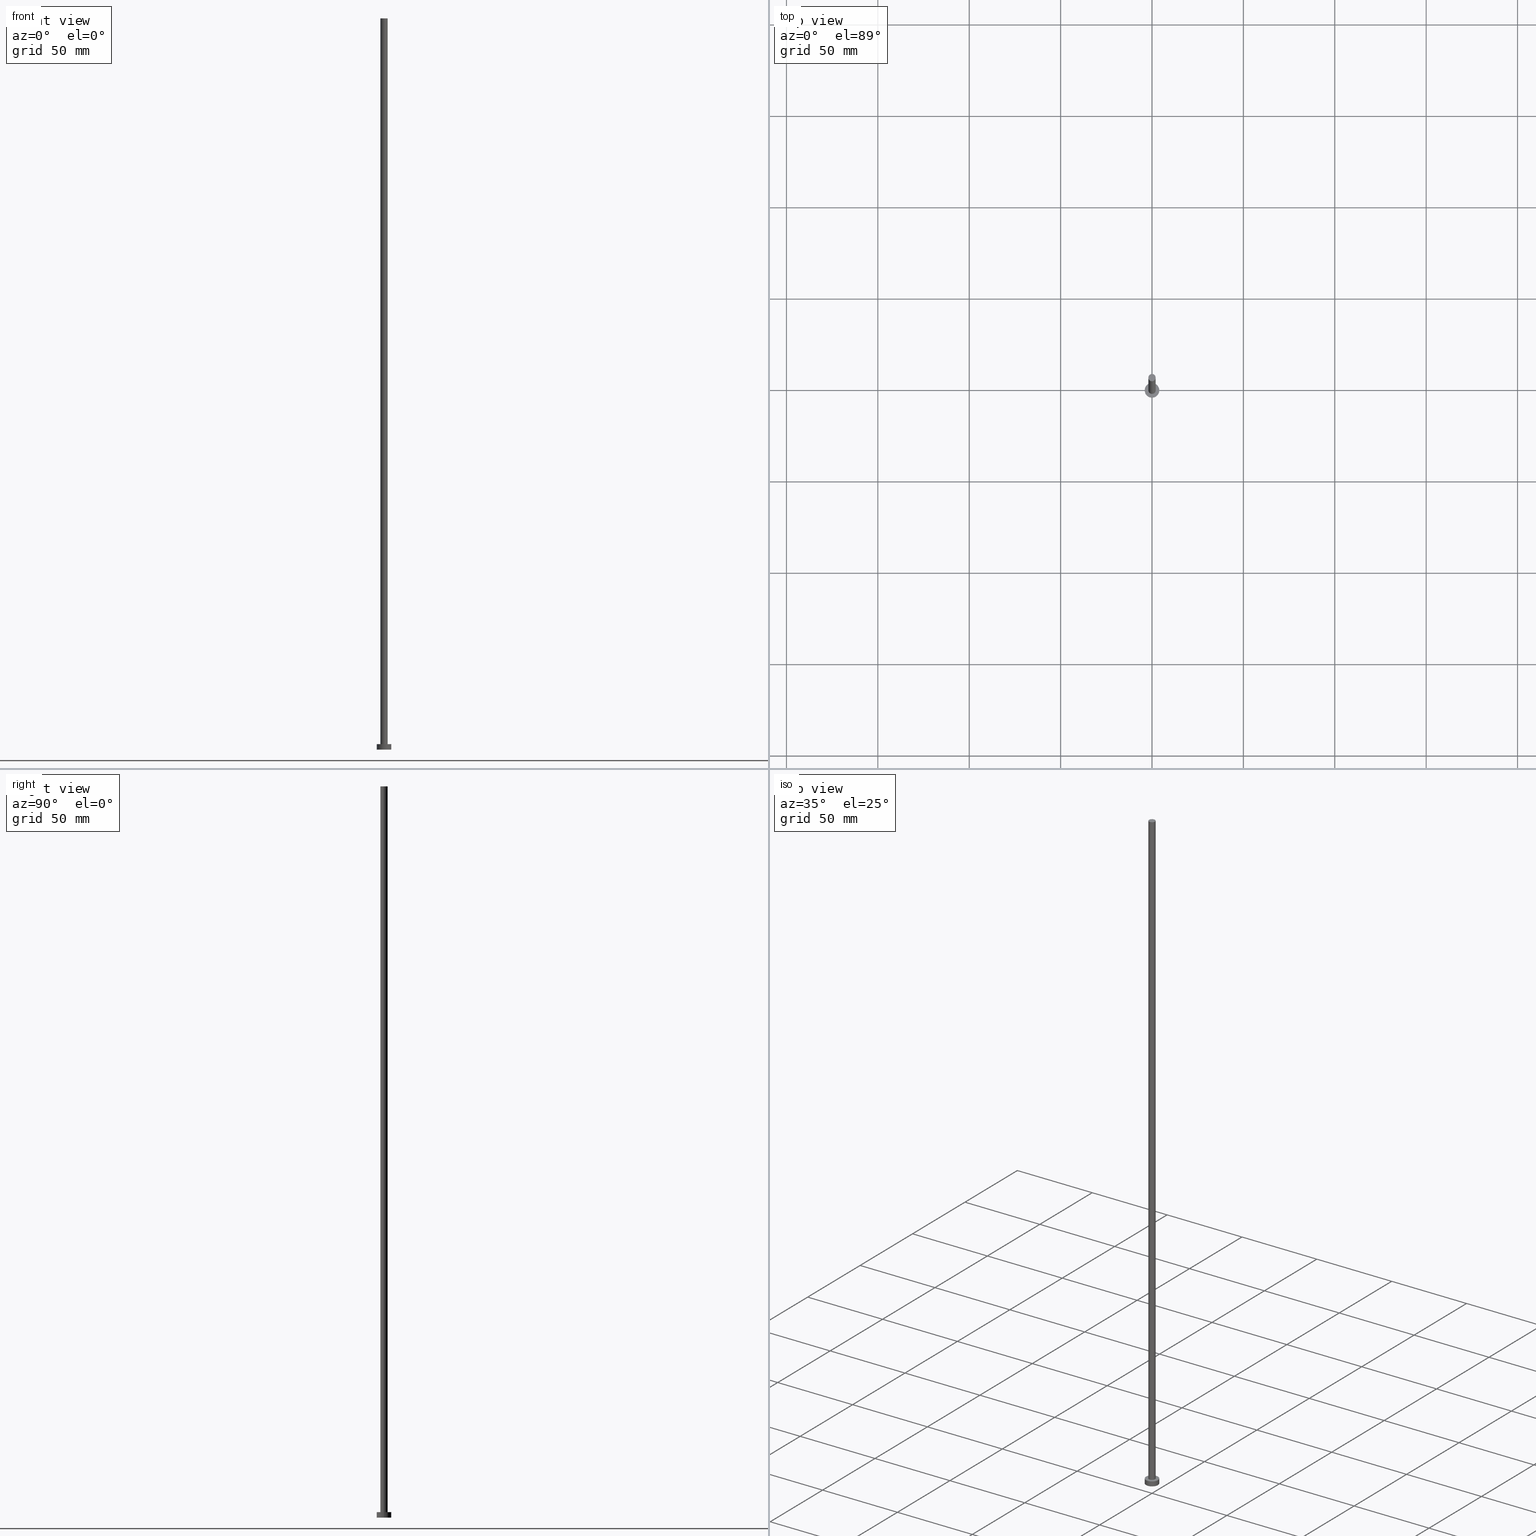
[diagram: canonical four-view strip — front | top / right | iso, engineering-drawing reading convention]
A machine part, canonical four-view strip (front | top / right | iso — engineering-drawing reading convention). The complete STEP part file that produces these views, byte-faithful:
ISO-10303-21;
HEADER;
FILE_DESCRIPTION (( 'STEP AP203' ),
    '1' );
FILE_NAME ('f3f9.STEP',
    '2023-02-12T12:38:47',
    ( '' ),
    ( '' ),
    'SwSTEP 2.0',
    'SolidWorks 2019',
    '' );
FILE_SCHEMA (( 'CONFIG_CONTROL_DESIGN' ));
ENDSEC;

DATA;
#1 = CIRCLE ( 'NONE', #149, 2.000000000000000000 ) ;
#2 = FACE_OUTER_BOUND ( 'NONE', #100, .T. ) ;
#3 = PRODUCT_DEFINITION ( 'NEZN�M�', '', #140, #81 ) ;
#4 = CYLINDRICAL_SURFACE ( 'NONE', #96, 4.000000000000000000 ) ;
#5 = DIRECTION ( 'NONE',  ( 1.000000000000000000, 0.000000000000000000, 0.000000000000000000 ) ) ;
#6 = LOCAL_TIME ( 13, 38, 47.00000000000000000, #209 ) ;
#7 = CARTESIAN_POINT ( 'NONE',  ( 0.000000000000000000, 0.000000000000000000, 3.000000000000000000 ) ) ;
#8 = CC_DESIGN_PERSON_AND_ORGANIZATION_ASSIGNMENT ( #71, #42, ( #3 ) ) ;
#9 = ADVANCED_FACE ( 'NONE', ( #186 ), #10, .T. ) ;
#10 = CYLINDRICAL_SURFACE ( 'NONE', #20, 2.000000000000000000 ) ;
#11 = VERTEX_POINT ( 'NONE', #55 ) ;
#12 = FACE_OUTER_BOUND ( 'NONE', #247, .T. ) ;
#13 = APPROVAL_STATUS ( 'not_yet_approved' ) ;
#14 = APPROVAL_DATE_TIME ( #233, #85 ) ;
#15 = UNCERTAINTY_MEASURE_WITH_UNIT (LENGTH_MEASURE( 1.000000000000000082E-05 ), #221, 'distance_accuracy_value', 'NONE');
#16 = EDGE_CURVE ( 'NONE', #65, #173, #201, .T. ) ;
#17 = PRODUCT_RELATED_PRODUCT_CATEGORY ( 'detail', '', ( #181 ) ) ;
#18 = APPROVAL_ROLE ( '' ) ;
#19 = PERSON_AND_ORGANIZATION ( #254, #253 ) ;
#20 = AXIS2_PLACEMENT_3D ( 'NONE', #66, #225, #34 ) ;
#21 = PERSON_AND_ORGANIZATION_ROLE ( 'design_supplier' ) ;
#22 = CARTESIAN_POINT ( 'NONE',  ( 0.000000000000000000, 0.000000000000000000, 400.0000000000000000 ) ) ;
#23 = CARTESIAN_POINT ( 'NONE',  ( 0.000000000000000000, 0.000000000000000000, 400.0000000000000000 ) ) ;
#24 = CC_DESIGN_APPROVAL ( #207, ( #140 ) ) ;
#25 = EDGE_CURVE ( 'NONE', #169, #147, #231, .T. ) ;
#26 = CARTESIAN_POINT ( 'NONE',  ( 2.000000000000000000, 2.449293598294706414E-16, 3.000000000000000000 ) ) ;
#27 = DIRECTION ( 'NONE',  ( 1.000000000000000000, 0.000000000000000000, 0.000000000000000000 ) ) ;
#28 = EDGE_CURVE ( 'NONE', #11, #206, #237, .T. ) ;
#29 = ORIENTED_EDGE ( 'NONE', *, *, #218, .T. ) ;
#30 = DIRECTION ( 'NONE',  ( -0.000000000000000000, -0.000000000000000000, -1.000000000000000000 ) ) ;
#31 = ORIENTED_EDGE ( 'NONE', *, *, #102, .F. ) ;
#32 = CARTESIAN_POINT ( 'NONE',  ( 0.000000000000000000, 0.000000000000000000, 0.000000000000000000 ) ) ;
#33 = EDGE_CURVE ( 'NONE', #240, #169, #104, .T. ) ;
#34 = DIRECTION ( 'NONE',  ( -1.000000000000000000, 0.000000000000000000, 0.000000000000000000 ) ) ;
#35 = CARTESIAN_POINT ( 'NONE',  ( -2.000000000000000000, 0.000000000000000000, 400.0000000000000000 ) ) ;
#36 = LOCAL_TIME ( 13, 38, 47.00000000000000000, #58 ) ;
#37 = APPROVAL ( #13, 'NEUR�EN�' ) ;
#38 = CARTESIAN_POINT ( 'NONE',  ( 2.000000000000000000, 2.449293598294706414E-16, 400.0000000000000000 ) ) ;
#39 = CARTESIAN_POINT ( 'NONE',  ( 0.000000000000000000, 0.000000000000000000, 400.0000000000000000 ) ) ;
#40 = CALENDAR_DATE ( 2023, 12, 2 ) ;
#41 = VECTOR ( 'NONE', #142, 1000.000000000000000 ) ;
#42 = PERSON_AND_ORGANIZATION_ROLE ( 'creator' ) ;
#43 = PERSON_AND_ORGANIZATION_ROLE ( 'design_owner' ) ;
#44 = DATE_AND_TIME ( #193, #113 ) ;
#45 = PERSON_AND_ORGANIZATION ( #254, #253 ) ;
#46 = FACE_OUTER_BOUND ( 'NONE', #63, .T. ) ;
#47 = DIRECTION ( 'NONE',  ( -1.000000000000000000, 0.000000000000000000, 0.000000000000000000 ) ) ;
#48 = AXIS2_PLACEMENT_3D ( 'NONE', #23, #182, #199 ) ;
#49 = DIRECTION ( 'NONE',  ( 0.000000000000000000, 0.000000000000000000, 1.000000000000000000 ) ) ;
#50 = ORIENTED_EDGE ( 'NONE', *, *, #90, .T. ) ;
#51 = ORIENTED_EDGE ( 'NONE', *, *, #16, .T. ) ;
#52 = DIRECTION ( 'NONE',  ( -0.000000000000000000, -0.000000000000000000, -1.000000000000000000 ) ) ;
#53 = ORIENTED_EDGE ( 'NONE', *, *, #25, .F. ) ;
#54 = FACE_OUTER_BOUND ( 'NONE', #227, .T. ) ;
#55 = CARTESIAN_POINT ( 'NONE',  ( 4.000000000000000000, 4.898587196589412829E-16, 0.000000000000000000 ) ) ;
#56 = CARTESIAN_POINT ( 'NONE',  ( 2.000000000000000000, 2.449293598294706414E-16, 400.0000000000000000 ) ) ;
#57 = ADVANCED_BREP_SHAPE_REPRESENTATION ( 'f3f9', ( #121, #126 ), #106 ) ;
#58 = COORDINATED_UNIVERSAL_TIME_OFFSET ( 1, 0, .AHEAD. ) ;
#59 = AXIS2_PLACEMENT_3D ( 'NONE', #184, #217, #5 ) ;
#60 = DATE_AND_TIME ( #40, #6 ) ;
#61 = CARTESIAN_POINT ( 'NONE',  ( 0.000000000000000000, 0.000000000000000000, 3.000000000000000000 ) ) ;
#62 = DIRECTION ( 'NONE',  ( 0.000000000000000000, 0.000000000000000000, 1.000000000000000000 ) ) ;
#63 = EDGE_LOOP ( 'NONE', ( #51, #128 ) ) ;
#64 = EDGE_CURVE ( 'NONE', #173, #11, #73, .T. ) ;
#65 = VERTEX_POINT ( 'NONE', #141 ) ;
#66 = CARTESIAN_POINT ( 'NONE',  ( 0.000000000000000000, 0.000000000000000000, 400.0000000000000000 ) ) ;
#67 = DIRECTION ( 'NONE',  ( -0.000000000000000000, -0.000000000000000000, -1.000000000000000000 ) ) ;
#68 = DIRECTION ( 'NONE',  ( 0.000000000000000000, 0.000000000000000000, 1.000000000000000000 ) ) ;
#69 = CIRCLE ( 'NONE', #212, 4.000000000000000000 ) ;
#70 = DIRECTION ( 'NONE',  ( 1.000000000000000000, 0.000000000000000000, 0.000000000000000000 ) ) ;
#71 = PERSON_AND_ORGANIZATION ( #254, #253 ) ;
#72 = PERSON_AND_ORGANIZATION_ROLE ( 'creator' ) ;
#73 = LINE ( 'NONE', #122, #112 ) ;
#74 = AXIS2_PLACEMENT_3D ( 'NONE', #168, #228, #108 ) ;
#75 = DIRECTION ( 'NONE',  ( 0.000000000000000000, 0.000000000000000000, 1.000000000000000000 ) ) ;
#76 = ORIENTED_EDGE ( 'NONE', *, *, #16, .F. ) ;
#77 = CARTESIAN_POINT ( 'NONE',  ( 0.000000000000000000, 0.000000000000000000, 3.000000000000000000 ) ) ;
#78 = EDGE_CURVE ( 'NONE', #169, #240, #1, .T. ) ;
#79 = DIRECTION ( 'NONE',  ( 1.000000000000000000, 0.000000000000000000, 0.000000000000000000 ) ) ;
#80 = DIRECTION ( 'NONE',  ( -0.000000000000000000, -0.000000000000000000, -1.000000000000000000 ) ) ;
#81 = DESIGN_CONTEXT ( 'detailed design', #145, 'design' ) ;
#82 = APPROVAL_PERSON_ORGANIZATION ( #115, #85, #160 ) ;
#83 = CARTESIAN_POINT ( 'NONE',  ( -4.000000000000000000, 0.000000000000000000, 0.000000000000000000 ) ) ;
#84 = ORIENTED_EDGE ( 'NONE', *, *, #148, .F. ) ;
#85 = APPROVAL ( #236, 'NEUR�EN�' ) ;
#86 = ORIENTED_EDGE ( 'NONE', *, *, #148, .T. ) ;
#87 = DIRECTION ( 'NONE',  ( -1.000000000000000000, 0.000000000000000000, 0.000000000000000000 ) ) ;
#88 = DIRECTION ( 'NONE',  ( -0.000000000000000000, -0.000000000000000000, -1.000000000000000000 ) ) ;
#89 = APPROVAL_DATE_TIME ( #44, #37 ) ;
#90 = EDGE_CURVE ( 'NONE', #65, #206, #239, .T. ) ;
#91 = APPROVAL_STATUS ( 'not_yet_approved' ) ;
#92 = CALENDAR_DATE ( 2023, 12, 2 ) ;
#93 = CLOSED_SHELL ( 'NONE', ( #9, #152, #98, #119, #243, #255, #136 ) ) ;
#94 = APPLICATION_PROTOCOL_DEFINITION ( 'international standard', 'config_control_design', 1994, #145 ) ;
#95 = DIRECTION ( 'NONE',  ( 0.000000000000000000, 0.000000000000000000, 1.000000000000000000 ) ) ;
#96 = AXIS2_PLACEMENT_3D ( 'NONE', #77, #80, #47 ) ;
#97 = LINE ( 'NONE', #165, #197 ) ;
#98 = ADVANCED_FACE ( 'NONE', ( #99 ), #4, .T. ) ;
#99 = FACE_OUTER_BOUND ( 'NONE', #103, .T. ) ;
#100 = EDGE_LOOP ( 'NONE', ( #224, #162 ) ) ;
#101 = APPLICATION_PROTOCOL_DEFINITION ( 'international standard', 'config_control_design', 1994, #130 ) ;
#102 = EDGE_CURVE ( 'NONE', #203, #147, #210, .T. ) ;
#103 = EDGE_LOOP ( 'NONE', ( #200, #76, #50, #124 ) ) ;
#104 = CIRCLE ( 'NONE', #222, 2.000000000000000000 ) ;
#105 = DIRECTION ( 'NONE',  ( -1.000000000000000000, 0.000000000000000000, 0.000000000000000000 ) ) ;
#106 =( GEOMETRIC_REPRESENTATION_CONTEXT ( 3 ) GLOBAL_UNCERTAINTY_ASSIGNED_CONTEXT ( ( #15 ) ) GLOBAL_UNIT_ASSIGNED_CONTEXT ( ( #221, #244, #185 ) ) REPRESENTATION_CONTEXT ( 'NONE', 'WORKASPACE' ) );
#107 = ORIENTED_EDGE ( 'NONE', *, *, #218, .F. ) ;
#108 = DIRECTION ( 'NONE',  ( 1.000000000000000000, 0.000000000000000000, 0.000000000000000000 ) ) ;
#109 = EDGE_CURVE ( 'NONE', #206, #11, #135, .T. ) ;
#110 = CARTESIAN_POINT ( 'NONE',  ( 4.000000000000000000, 4.898587196589412829E-16, 3.000000000000000000 ) ) ;
#111 = DIRECTION ( 'NONE',  ( 1.000000000000000000, 0.000000000000000000, 0.000000000000000000 ) ) ;
#112 = VECTOR ( 'NONE', #120, 1000.000000000000000 ) ;
#113 = LOCAL_TIME ( 13, 38, 47.00000000000000000, #139 ) ;
#114 = APPROVAL_DATE_TIME ( #251, #207 ) ;
#115 = PERSON_AND_ORGANIZATION ( #254, #253 ) ;
#116 = CC_DESIGN_DATE_AND_TIME_ASSIGNMENT ( #195, #196, ( #3 ) ) ;
#117 = CARTESIAN_POINT ( 'NONE',  ( 0.000000000000000000, 0.000000000000000000, 3.000000000000000000 ) ) ;
#118 = CARTESIAN_POINT ( 'NONE',  ( 0.000000000000000000, 0.000000000000000000, 3.000000000000000000 ) ) ;
#119 = ADVANCED_FACE ( 'NONE', ( #166, #46 ), #163, .T. ) ;
#120 = DIRECTION ( 'NONE',  ( -0.000000000000000000, -0.000000000000000000, -1.000000000000000000 ) ) ;
#121 = MANIFOLD_SOLID_BREP ( 'P�idat vysunut�m3', #93 ) ;
#122 = CARTESIAN_POINT ( 'NONE',  ( 4.000000000000000000, 4.898587196589412829E-16, 3.000000000000000000 ) ) ;
#123 = AXIS2_PLACEMENT_3D ( 'NONE', #249, #131, #111 ) ;
#124 = ORIENTED_EDGE ( 'NONE', *, *, #109, .T. ) ;
#125 = CC_DESIGN_PERSON_AND_ORGANIZATION_ASSIGNMENT ( #138, #235, ( #234 ) ) ;
#126 = AXIS2_PLACEMENT_3D ( 'NONE', #211, #213, #178 ) ;
#127 = EDGE_CURVE ( 'NONE', #173, #65, #69, .T. ) ;
#128 = ORIENTED_EDGE ( 'NONE', *, *, #127, .T. ) ;
#129 = EDGE_LOOP ( 'NONE', ( #202, #188, #29, #84 ) ) ;
#130 = APPLICATION_CONTEXT ( 'configuration controlled 3d designs of mechanical parts and assemblies' ) ;
#131 = DIRECTION ( 'NONE',  ( 0.000000000000000000, 0.000000000000000000, 1.000000000000000000 ) ) ;
#132 = CC_DESIGN_PERSON_AND_ORGANIZATION_ASSIGNMENT ( #19, #43, ( #181 ) ) ;
#133 = SHAPE_DEFINITION_REPRESENTATION ( #183, #57 ) ;
#134 = SECURITY_CLASSIFICATION_LEVEL ( 'unclassified' ) ;
#135 = CIRCLE ( 'NONE', #59, 4.000000000000000000 ) ;
#136 = ADVANCED_FACE ( 'NONE', ( #2 ), #198, .T. ) ;
#137 = AXIS2_PLACEMENT_3D ( 'NONE', #32, #68, #153 ) ;
#138 = PERSON_AND_ORGANIZATION ( #254, #253 ) ;
#139 = COORDINATED_UNIVERSAL_TIME_OFFSET ( 1, 0, .AHEAD. ) ;
#140 = PRODUCT_DEFINITION_FORMATION_WITH_SPECIFIED_SOURCE ( 'LIBOVOLN�', '', #181, .NOT_KNOWN. ) ;
#141 = CARTESIAN_POINT ( 'NONE',  ( -4.000000000000000000, 0.000000000000000000, 3.000000000000000000 ) ) ;
#142 = DIRECTION ( 'NONE',  ( -0.000000000000000000, -0.000000000000000000, -1.000000000000000000 ) ) ;
#143 = ORIENTED_EDGE ( 'NONE', *, *, #33, .F. ) ;
#144 = LOCAL_TIME ( 13, 38, 47.00000000000000000, #156 ) ;
#145 = APPLICATION_CONTEXT ( 'configuration controlled 3d designs of mechanical parts and assemblies' ) ;
#146 = ORIENTED_EDGE ( 'NONE', *, *, #102, .T. ) ;
#147 = VERTEX_POINT ( 'NONE', #26 ) ;
#148 = EDGE_CURVE ( 'NONE', #240, #203, #97, .T. ) ;
#149 = AXIS2_PLACEMENT_3D ( 'NONE', #22, #75, #27 ) ;
#150 = CYLINDRICAL_SURFACE ( 'NONE', #219, 2.000000000000000000 ) ;
#151 = ORIENTED_EDGE ( 'NONE', *, *, #127, .F. ) ;
#152 = ADVANCED_FACE ( 'NONE', ( #12 ), #248, .T. ) ;
#153 = DIRECTION ( 'NONE',  ( 1.000000000000000000, 0.000000000000000000, -0.000000000000000000 ) ) ;
#154 = CC_DESIGN_APPROVAL ( #37, ( #234 ) ) ;
#155 = DIRECTION ( 'NONE',  ( 0.000000000000000000, 0.000000000000000000, 1.000000000000000000 ) ) ;
#156 = COORDINATED_UNIVERSAL_TIME_OFFSET ( 1, 0, .AHEAD. ) ;
#157 = APPROVAL_ROLE ( '' ) ;
#158 = PERSON_AND_ORGANIZATION ( #254, #253 ) ;
#159 = CC_DESIGN_DATE_AND_TIME_ASSIGNMENT ( #60, #176, ( #234 ) ) ;
#160 = APPROVAL_ROLE ( '' ) ;
#161 = DIRECTION ( 'NONE',  ( 1.000000000000000000, 0.000000000000000000, 0.000000000000000000 ) ) ;
#162 = ORIENTED_EDGE ( 'NONE', *, *, #78, .T. ) ;
#163 = PLANE ( 'NONE',  #241 ) ;
#164 = ORIENTED_EDGE ( 'NONE', *, *, #109, .F. ) ;
#165 = CARTESIAN_POINT ( 'NONE',  ( -2.000000000000000000, 0.000000000000000000, 400.0000000000000000 ) ) ;
#166 = FACE_BOUND ( 'NONE', #187, .T. ) ;
#167 = ORIENTED_EDGE ( 'NONE', *, *, #28, .T. ) ;
#168 = CARTESIAN_POINT ( 'NONE',  ( 0.000000000000000000, 0.000000000000000000, 3.000000000000000000 ) ) ;
#169 = VERTEX_POINT ( 'NONE', #38 ) ;
#170 = ORIENTED_EDGE ( 'NONE', *, *, #28, .F. ) ;
#171 = CIRCLE ( 'NONE', #74, 2.000000000000000000 ) ;
#172 = ORIENTED_EDGE ( 'NONE', *, *, #90, .F. ) ;
#173 = VERTEX_POINT ( 'NONE', #110 ) ;
#174 = VECTOR ( 'NONE', #88, 1000.000000000000000 ) ;
#175 = CARTESIAN_POINT ( 'NONE',  ( 0.000000000000000000, 0.000000000000000000, 3.000000000000000000 ) ) ;
#176 = DATE_TIME_ROLE ( 'classification_date' ) ;
#177 = COORDINATED_UNIVERSAL_TIME_OFFSET ( 1, 0, .AHEAD. ) ;
#178 = DIRECTION ( 'NONE',  ( 1.000000000000000000, 0.000000000000000000, 0.000000000000000000 ) ) ;
#179 = APPROVAL_PERSON_ORGANIZATION ( #232, #207, #18 ) ;
#180 = DIRECTION ( 'NONE',  ( 1.000000000000000000, 0.000000000000000000, -0.000000000000000000 ) ) ;
#181 = PRODUCT ( 'f3f9', 'f3f9', '', ( #194 ) ) ;
#182 = DIRECTION ( 'NONE',  ( 0.000000000000000000, 0.000000000000000000, 1.000000000000000000 ) ) ;
#183 = PRODUCT_DEFINITION_SHAPE ( 'NONE', 'NONE',  #3 ) ;
#184 = CARTESIAN_POINT ( 'NONE',  ( 0.000000000000000000, 0.000000000000000000, 0.000000000000000000 ) ) ;
#185 =( NAMED_UNIT ( * ) SI_UNIT ( $, .STERADIAN. ) SOLID_ANGLE_UNIT ( ) );
#186 = FACE_OUTER_BOUND ( 'NONE', #129, .T. ) ;
#187 = EDGE_LOOP ( 'NONE', ( #31, #107 ) ) ;
#188 = ORIENTED_EDGE ( 'NONE', *, *, #25, .T. ) ;
#189 = PLANE ( 'NONE',  #137 ) ;
#190 = CC_DESIGN_PERSON_AND_ORGANIZATION_ASSIGNMENT ( #215, #21, ( #140 ) ) ;
#191 = AXIS2_PLACEMENT_3D ( 'NONE', #175, #155, #70 ) ;
#192 = DIRECTION ( 'NONE',  ( 1.000000000000000000, 0.000000000000000000, 0.000000000000000000 ) ) ;
#193 = CALENDAR_DATE ( 2023, 12, 2 ) ;
#194 = MECHANICAL_CONTEXT ( 'NONE', #130, 'mechanical' ) ;
#195 = DATE_AND_TIME ( #214, #36 ) ;
#196 = DATE_TIME_ROLE ( 'creation_date' ) ;
#197 = VECTOR ( 'NONE', #67, 1000.000000000000000 ) ;
#198 = PLANE ( 'NONE',  #48 ) ;
#199 = DIRECTION ( 'NONE',  ( 1.000000000000000000, 0.000000000000000000, -0.000000000000000000 ) ) ;
#200 = ORIENTED_EDGE ( 'NONE', *, *, #64, .F. ) ;
#201 = CIRCLE ( 'NONE', #191, 4.000000000000000000 ) ;
#202 = ORIENTED_EDGE ( 'NONE', *, *, #78, .F. ) ;
#203 = VERTEX_POINT ( 'NONE', #205 ) ;
#204 = EDGE_LOOP ( 'NONE', ( #164, #170 ) ) ;
#205 = CARTESIAN_POINT ( 'NONE',  ( -2.000000000000000000, 0.000000000000000000, 3.000000000000000000 ) ) ;
#206 = VERTEX_POINT ( 'NONE', #83 ) ;
#207 = APPROVAL ( #91, 'NEUR�EN�' ) ;
#208 = DIRECTION ( 'NONE',  ( 0.000000000000000000, 0.000000000000000000, 1.000000000000000000 ) ) ;
#209 = COORDINATED_UNIVERSAL_TIME_OFFSET ( 1, 0, .AHEAD. ) ;
#210 = CIRCLE ( 'NONE', #245, 2.000000000000000000 ) ;
#211 = CARTESIAN_POINT ( 'NONE',  ( 0.000000000000000000, 0.000000000000000000, 0.000000000000000000 ) ) ;
#212 = AXIS2_PLACEMENT_3D ( 'NONE', #118, #62, #79 ) ;
#213 = DIRECTION ( 'NONE',  ( 0.000000000000000000, 0.000000000000000000, 1.000000000000000000 ) ) ;
#214 = CALENDAR_DATE ( 2023, 12, 2 ) ;
#215 = PERSON_AND_ORGANIZATION ( #254, #253 ) ;
#216 = CC_DESIGN_APPROVAL ( #85, ( #3 ) ) ;
#217 = DIRECTION ( 'NONE',  ( 0.000000000000000000, 0.000000000000000000, 1.000000000000000000 ) ) ;
#218 = EDGE_CURVE ( 'NONE', #147, #203, #171, .T. ) ;
#219 = AXIS2_PLACEMENT_3D ( 'NONE', #230, #52, #105 ) ;
#220 = CARTESIAN_POINT ( 'NONE',  ( -4.000000000000000000, 0.000000000000000000, 3.000000000000000000 ) ) ;
#221 =( LENGTH_UNIT ( ) NAMED_UNIT ( * ) SI_UNIT ( .MILLI., .METRE. ) );
#222 = AXIS2_PLACEMENT_3D ( 'NONE', #39, #208, #192 ) ;
#223 = CC_DESIGN_SECURITY_CLASSIFICATION ( #234, ( #140 ) ) ;
#224 = ORIENTED_EDGE ( 'NONE', *, *, #33, .T. ) ;
#225 = DIRECTION ( 'NONE',  ( -0.000000000000000000, -0.000000000000000000, -1.000000000000000000 ) ) ;
#226 = FACE_OUTER_BOUND ( 'NONE', #204, .T. ) ;
#227 = EDGE_LOOP ( 'NONE', ( #53, #143, #86, #146 ) ) ;
#228 = DIRECTION ( 'NONE',  ( 0.000000000000000000, 0.000000000000000000, 1.000000000000000000 ) ) ;
#229 = CC_DESIGN_PERSON_AND_ORGANIZATION_ASSIGNMENT ( #158, #72, ( #140 ) ) ;
#230 = CARTESIAN_POINT ( 'NONE',  ( 0.000000000000000000, 0.000000000000000000, 400.0000000000000000 ) ) ;
#231 = LINE ( 'NONE', #56, #174 ) ;
#232 = PERSON_AND_ORGANIZATION ( #254, #253 ) ;
#233 = DATE_AND_TIME ( #252, #144 ) ;
#234 = SECURITY_CLASSIFICATION ( '', '', #134 ) ;
#235 = PERSON_AND_ORGANIZATION_ROLE ( 'classification_officer' ) ;
#236 = APPROVAL_STATUS ( 'not_yet_approved' ) ;
#237 = CIRCLE ( 'NONE', #123, 4.000000000000000000 ) ;
#238 = LOCAL_TIME ( 13, 38, 47.00000000000000000, #177 ) ;
#239 = LINE ( 'NONE', #220, #41 ) ;
#240 = VERTEX_POINT ( 'NONE', #35 ) ;
#241 = AXIS2_PLACEMENT_3D ( 'NONE', #117, #49, #180 ) ;
#242 = ORIENTED_EDGE ( 'NONE', *, *, #64, .T. ) ;
#243 = ADVANCED_FACE ( 'NONE', ( #226 ), #189, .F. ) ;
#244 =( NAMED_UNIT ( * ) PLANE_ANGLE_UNIT ( ) SI_UNIT ( $, .RADIAN. ) );
#245 = AXIS2_PLACEMENT_3D ( 'NONE', #61, #95, #161 ) ;
#246 = AXIS2_PLACEMENT_3D ( 'NONE', #7, #30, #87 ) ;
#247 = EDGE_LOOP ( 'NONE', ( #151, #242, #167, #172 ) ) ;
#248 = CYLINDRICAL_SURFACE ( 'NONE', #246, 4.000000000000000000 ) ;
#249 = CARTESIAN_POINT ( 'NONE',  ( 0.000000000000000000, 0.000000000000000000, 0.000000000000000000 ) ) ;
#250 = APPROVAL_PERSON_ORGANIZATION ( #45, #37, #157 ) ;
#251 = DATE_AND_TIME ( #92, #238 ) ;
#252 = CALENDAR_DATE ( 2023, 12, 2 ) ;
#253 = ORGANIZATION ( 'NEUR�EN�', 'NEUR�EN�', '' ) ;
#254 = PERSON ( 'NEUR�EN�', 'NEUR�EN�', 'NEUR�EN�', ('NEUR�EN�'), ('NEUR�EN�'), ('NEUR�EN�') ) ;
#255 = ADVANCED_FACE ( 'NONE', ( #54 ), #150, .T. ) ;
ENDSEC;
END-ISO-10303-21;
